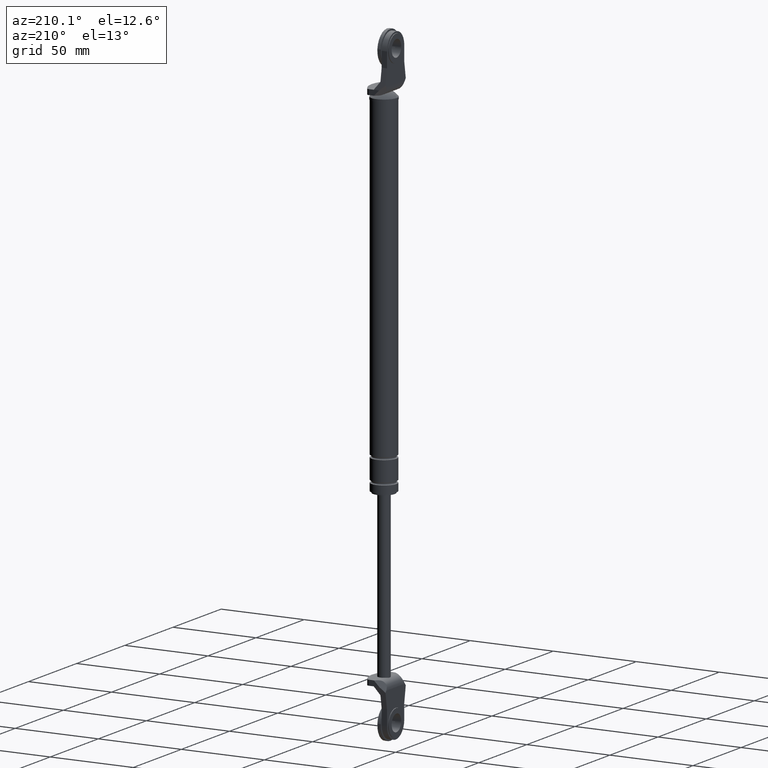
[diagram: clean part render]
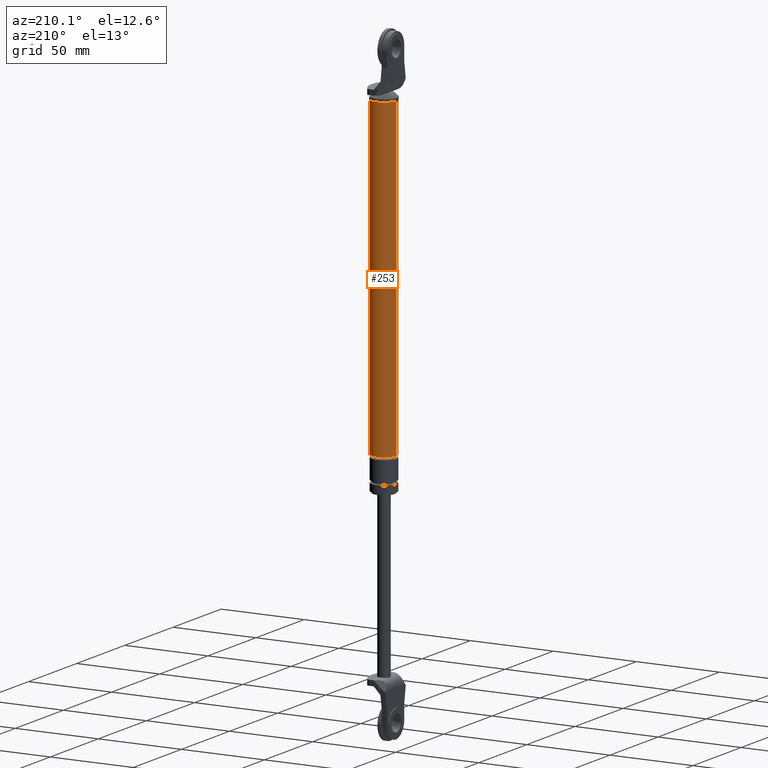
[diagram: same view with one face highlighted and labeled with its STEP entity id]
A machine part, auxiliary view. The second image highlights one B-rep face of the part: STEP entity #253.
In plain terms, the highlighted cylindrical surface (edge-blend (fillet) strip) has radius 7.5 mm, axis along (0, 0, -1).
Its self-contained STEP definition (entity closure, byte-faithful):
#253=ADVANCED_FACE('',(#787),#786,.T.);
#786=CYLINDRICAL_SURFACE('',#1400,7.50000000000E+000);
#787=FACE_OUTER_BOUND('',#1401,.T.);
#1397=CARTESIAN_POINT('',(7.00000000000E+000,0.00000000000E+000,1.02800000000E+003));
#1398=DIRECTION('',(-0.00000000000E+000,-0.00000000000E+000,1.00000000000E+000));
#1399=DIRECTION('',(1.00000000000E+000,-0.00000000000E+000,-0.00000000000E+000));
#1400=AXIS2_PLACEMENT_3D('',#1397,#1398,#1399);
#1401=EDGE_LOOP('',(#1840,#1841,#1842,#1843));
#1840=ORIENTED_EDGE('',*,*,#2031,.F.);
#1841=ORIENTED_EDGE('',*,*,#2124,.T.);
#1842=ORIENTED_EDGE('',*,*,#2101,.F.);
#1843=ORIENTED_EDGE('',*,*,#2125,.F.);
#2031=EDGE_CURVE('',#2427,#2426,#2434,.T.);
#2101=EDGE_CURVE('',#2899,#2898,#2906,.T.);
#2124=EDGE_CURVE('',#2427,#2898,#3056,.T.);
#2125=EDGE_CURVE('',#2426,#2899,#3062,.T.);
#2426=VERTEX_POINT('',#3676);
#2427=VERTEX_POINT('',#3677);
#2434=CIRCLE('',#3685,7.50000000000E+000);
#2898=VERTEX_POINT('',#3978);
#2899=VERTEX_POINT('',#3979);
#2906=CIRCLE('',#3987,7.50000000000E+000);
#3056=(BOUNDED_CURVE() B_SPLINE_CURVE(1,(#4076,#4077),.UNSPECIFIED.,.F.,.F.) B_SPLINE_CURVE_WITH_KNOTS((2,2),(4.77326968685E-002,9.52267303024E-001),.UNSPECIFIED.) CURVE() GEOMETRIC_REPRESENTATION_ITEM() RATIONAL_B_SPLINE_CURVE((1.00000000000E+000,1.00000000000E+000)) REPRESENTATION_ITEM('') );
#3062=(BOUNDED_CURVE() B_SPLINE_CURVE(1,(#4078,#4079),.UNSPECIFIED.,.F.,.F.) B_SPLINE_CURVE_WITH_KNOTS((2,2),(4.77326968974E-002,9.52267303103E-001),.UNSPECIFIED.) CURVE() GEOMETRIC_REPRESENTATION_ITEM() RATIONAL_B_SPLINE_CURVE((7.50000000000E-001,7.50000000000E-001)) REPRESENTATION_ITEM('') );
#3676=CARTESIAN_POINT('',(-5.00000000000E-001,0.00000000000E+000,2.80000000000E+001));
#3677=CARTESIAN_POINT('',(1.45000000000E+001,5.92118946467E-016,2.80000000000E+001));
#3682=CARTESIAN_POINT('',(7.00000000000E+000,0.00000000000E+000,2.80000000000E+001));
#3683=DIRECTION('',(-0.00000000000E+000,0.00000000000E+000,-1.00000000000E+000));
#3684=DIRECTION('',(-1.00000000000E+000,-1.22460635382E-016,0.00000000000E+000));
#3685=AXIS2_PLACEMENT_3D('',#3682,#3683,#3684);
#3978=CARTESIAN_POINT('',(1.45000000000E+001,0.00000000000E+000,2.17500000000E+002));
#3979=CARTESIAN_POINT('',(-5.00000000000E-001,5.92118946467E-016,2.17500000000E+002));
#3984=CARTESIAN_POINT('',(7.00000000000E+000,0.00000000000E+000,2.17500000000E+002));
#3985=DIRECTION('',(0.00000000000E+000,0.00000000000E+000,1.00000000000E+000));
#3986=DIRECTION('',(1.00000000000E+000,-1.22460635382E-016,0.00000000000E+000));
#3987=AXIS2_PLACEMENT_3D('',#3984,#3985,#3986);
#4076=CARTESIAN_POINT('',(1.45000000000E+001,0.00000000000E+000,2.79999999940E+001));
#4077=CARTESIAN_POINT('',(1.45000000000E+001,0.00000000000E+000,2.17499999984E+002));
#4078=CARTESIAN_POINT('',(-5.00000000000E-001,-2.96059473233E-016,2.80000000000E+001));
#4079=CARTESIAN_POINT('',(-5.00000000000E-001,-2.96059473233E-016,2.17500000000E+002));